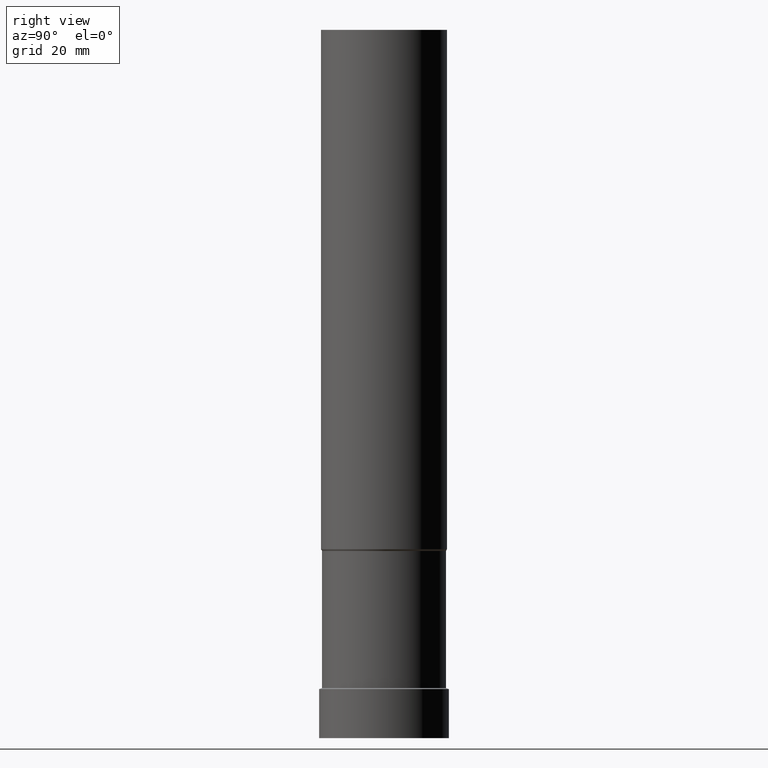
[diagram: clean part render]
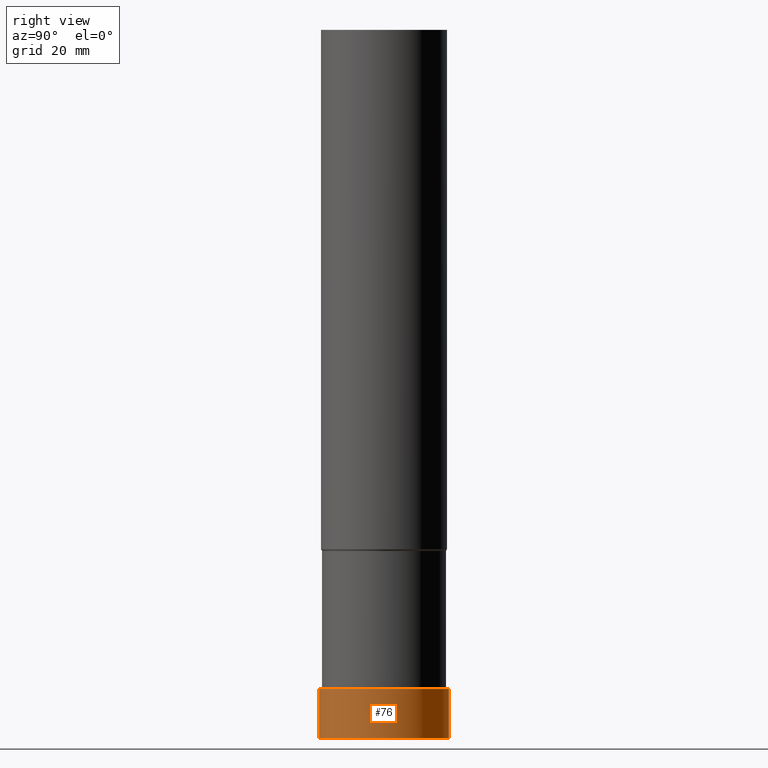
[diagram: same view with one face highlighted and labeled with its STEP entity id]
A machine part, right view. The second image highlights one B-rep face of the part: STEP entity #76.
In plain terms, the highlighted cylindrical surface (bore or boss wall) has radius 16.5 mm, axis along (0, -0, -1).
Its self-contained STEP definition (entity closure, byte-faithful):
#76=ADVANCED_FACE('',(#85,#86),#87,.T.);
#85=FACE_BOUND('',#104,.T.);
#86=FACE_BOUND('',#105,.T.);
#87=CYLINDRICAL_SURFACE('',#106,16.5);
#104=EDGE_LOOP('',(#125));
#105=EDGE_LOOP('',(#126));
#106=AXIS2_PLACEMENT_3D('',#127,#128,#129);
#125=ORIENTED_EDGE('',*,*,#155,.F.);
#126=ORIENTED_EDGE('',*,*,#154,.T.);
#127=CARTESIAN_POINT('',(-3.81508856512298E-016,6.08349677770183E-014,6.2305124510662));
#128=DIRECTION('',(6.12323399573677E-017,-1.03967763703291E-014,-1.0));
#129=DIRECTION('',(6.31791792437952E-031,1.0,-1.03967763703291E-014));
#154=EDGE_CURVE('',#160,#160,#161,.T.);
#155=EDGE_CURVE('',#162,#162,#163,.T.);
#160=VERTEX_POINT('',#172);
#161=CIRCLE('',#173,16.5);
#162=VERTEX_POINT('',#174);
#163=CIRCLE('',#175,16.4999999999999);
#172=CARTESIAN_POINT('',(-2.03378202127292E-031,16.5,2.02066721859314E-015));
#173=AXIS2_PLACEMENT_3D('',#184,#185,#186);
#174=CARTESIAN_POINT('',(-7.63017713024575E-016,16.5,12.4610249021321));
#175=AXIS2_PLACEMENT_3D('',#187,#188,#189);
#184=CARTESIAN_POINT('',(-1.04419666440721E-029,-3.94227684926667E-015,1.70530256582424E-013));
#185=DIRECTION('',(-6.12323399573677E-017,1.03967763703291E-014,1.0));
#186=DIRECTION('',(6.31791792437952E-031,1.0,-1.03967763703291E-014));
#187=CARTESIAN_POINT('',(-7.63017713024585E-016,1.25612212403303E-013,12.4610249021322));
#188=DIRECTION('',(-6.12323399573677E-017,1.03967763703291E-014,1.0));
#189=DIRECTION('',(6.31791792437952E-031,1.0,-1.03967763703291E-014));